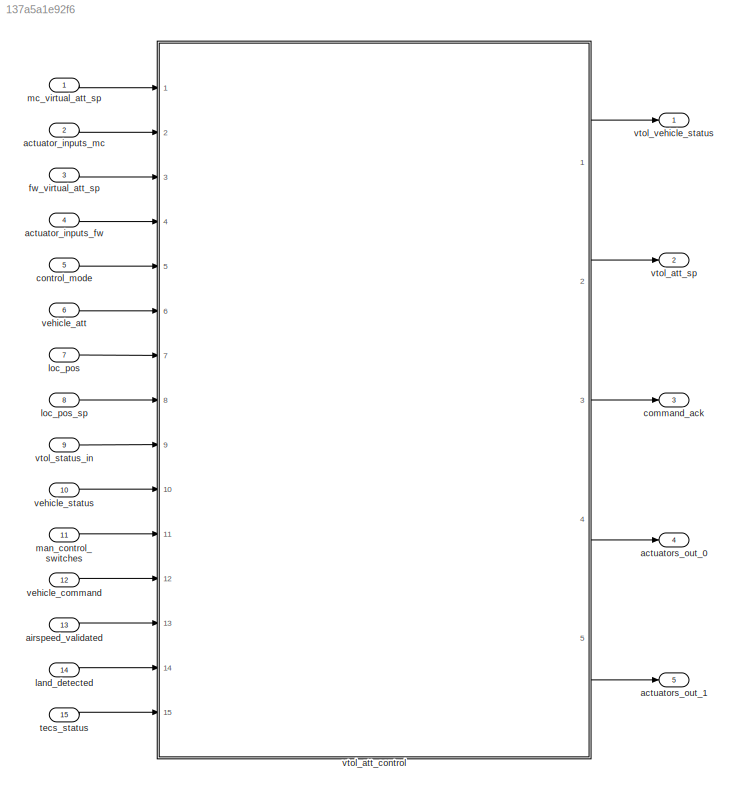
MODEL slx_137a5a1e92f6
KIND model
CONFIG AbsTol = auto
CONFIG EnableMultiTasking = off
CONFIG FixedStep = 0.005
CONFIG MaxStep = auto
CONFIG MinStep = auto
CONFIG RelTol = 1e-3
CONFIG SampleTimeConstraint = Unconstrained
CONFIG SolverName = FixedStepAuto
CONFIG StartTime = 0.0
CONFIG StopTime = 10.0
BLOCK [Inport] actuator_inputs_fw
  BusOutputAsStruct = on
  OutDataTypeStr = Bus: px4_actuator_controls_0
  Port = 4
BLOCK [Inport] actuator_inputs_mc
  BusOutputAsStruct = on
  OutDataTypeStr = Bus: px4_actuator_controls_0
  Port = 2
BLOCK [Outport] actuators_out_0
  OutDataTypeStr = Bus: px4_actuator_controls_0
  Port = 4
BLOCK [Outport] actuators_out_1
  OutDataTypeStr = Bus: px4_actuator_controls
  Port = 5
BLOCK [Inport] airspeed_validated
  BusOutputAsStruct = on
  OutDataTypeStr = Bus: px4_airspeed_validated
  Port = 13
BLOCK [Outport] command_ack
  OutDataTypeStr = Bus: px4_vehicle_command_ack
  Port = 3
BLOCK [Inport] control_mode
  BusOutputAsStruct = on
  OutDataTypeStr = Bus: px4_vehicle_control_mode
  Port = 5
BLOCK [Inport] fw_virtual_att_sp
  BusOutputAsStruct = on
  OutDataTypeStr = Bus: px4_vehicle_attitude_setpoint
  Port = 3
BLOCK [Inport] land_detected
  BusOutputAsStruct = on
  OutDataTypeStr = Bus: px4_vehicle_land_detected
  Port = 14
BLOCK [Inport] loc_pos
  BusOutputAsStruct = on
  OutDataTypeStr = Bus: px4_vehicle_local_position
  Port = 7
BLOCK [Inport] loc_pos_sp
  BusOutputAsStruct = on
  OutDataTypeStr = Bus: px4_vehicle_local_position_setpoint
  Port = 8
BLOCK [Inport] man_control_switches
  BusOutputAsStruct = on
  OutDataTypeStr = Bus: px4_manual_control_switches
  Port = 11
BLOCK [Inport] mc_virtual_att_sp
  BusOutputAsStruct = on
  OutDataTypeStr = Bus: px4_vehicle_attitude_setpoint
BLOCK [Inport] tecs_status
  BusOutputAsStruct = on
  OutDataTypeStr = Bus: px4_tecs_status
  Port = 15
BLOCK [Inport] vehicle_att
  BusOutputAsStruct = on
  OutDataTypeStr = Bus: px4_vehicle_attitude
  Port = 6
BLOCK [Inport] vehicle_command
  BusOutputAsStruct = on
  OutDataTypeStr = Bus: px4_vehicle_command
  Port = 12
BLOCK [Inport] vehicle_status
  BusOutputAsStruct = on
  OutDataTypeStr = Bus: px4_vehicle_status
  Port = 10
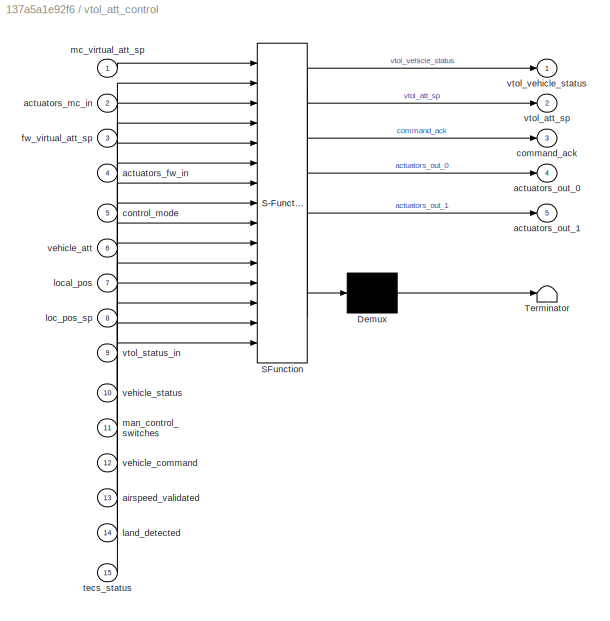
BLOCK [SubSystem] vtol_att_control
  ErrorFcn = Stateflow.Translate.translate
  PermitHierarchicalResolution = ExplicitOnly
  Ports = [15, 5]
  RequestExecContextInheritance = off
  SFBlockType = Chart
  TreatAsAtomicUnit = on
BLOCK [Demux] vtol_att_control/ Demux 
  Outputs = 1
  Ports = [1, 1]
BLOCK [S-Function] vtol_att_control/ SFunction 
  EnableBusSupport = on
  FunctionName = sf_sfun
  Parameters = FW_PSP_OFF,MPC_XY_CRUISE,VT_ARSP_BLEND,VT_ARSP_TRANS,VT_B_DEC_FF,VT_B_DEC_I,VT_B_DEC_MSS,VT_B_REV_DEL,VT_B_REV_OUT,VT_B_TRANS_DUR,VT_B_TRANS_RAMP,VT_ELEV_MC_LOCK,VT_FW_ALT_ERR,VT_FW_MIN_ALT,VT_FW_QC_P,VT_FW_QC_R,VT_F_TRANS_THR,VT_PSHER_RMP_DT,VT_TRANS_MIN_TM,VT_TRANS_TIMEOUT
  PortCounts = [15 6]
  Ports = [15, 6]
  SFcnIsStateOwnerBlock = off
  SFunctionDeploymentMode = off
  Tag = Stateflow S-Function 3
BLOCK [Terminator] vtol_att_control/ Terminator 
BLOCK [Inport] vtol_att_control/actuators_fw_in
  Port = 4
BLOCK [Inport] vtol_att_control/actuators_mc_in
  Port = 2
BLOCK [Outport] vtol_att_control/actuators_out_0
  Port = 4
BLOCK [Outport] vtol_att_control/actuators_out_1
  Port = 5
BLOCK [Inport] vtol_att_control/airspeed_validated
  Port = 13
BLOCK [Outport] vtol_att_control/command_ack
  Port = 3
BLOCK [Inport] vtol_att_control/control_mode
  Port = 5
BLOCK [Inport] vtol_att_control/fw_virtual_att_sp
  Port = 3
BLOCK [Inport] vtol_att_control/land_detected
  Port = 14
BLOCK [Inport] vtol_att_control/loc_pos_sp
  Port = 8
BLOCK [Inport] vtol_att_control/local_pos
  Port = 7
BLOCK [Inport] vtol_att_control/man_control_switches
  Port = 11
BLOCK [Inport] vtol_att_control/mc_virtual_att_sp
BLOCK [Inport] vtol_att_control/tecs_status
  Port = 15
BLOCK [Inport] vtol_att_control/vehicle_att
  Port = 6
BLOCK [Inport] vtol_att_control/vehicle_command
  Port = 12
BLOCK [Inport] vtol_att_control/vehicle_status
  Port = 10
BLOCK [Outport] vtol_att_control/vtol_att_sp
  Port = 2
BLOCK [Inport] vtol_att_control/vtol_status_in
  Port = 9
BLOCK [Outport] vtol_att_control/vtol_vehicle_status
BLOCK [Outport] vtol_att_sp
  OutDataTypeStr = Bus: px4_vehicle_attitude_setpoint
  Port = 2
BLOCK [Inport] vtol_status_in
  BusOutputAsStruct = on
  OutDataTypeStr = Bus: px4_vtol_vehicle_status
  Port = 9
BLOCK [Outport] vtol_vehicle_status
  OutDataTypeStr = Bus: px4_vtol_vehicle_status
LINE actuator_inputs_fw:1 -> vtol_att_control:4
LINE actuator_inputs_mc:1 -> vtol_att_control:2
LINE airspeed_validated:1 -> vtol_att_control:13
LINE control_mode:1 -> vtol_att_control:5
LINE fw_virtual_att_sp:1 -> vtol_att_control:3
LINE land_detected:1 -> vtol_att_control:14
LINE loc_pos:1 -> vtol_att_control:7
LINE loc_pos_sp:1 -> vtol_att_control:8
LINE man_control_switches:1 -> vtol_att_control:11
LINE mc_virtual_att_sp:1 -> vtol_att_control:1
LINE tecs_status:1 -> vtol_att_control:15
LINE vehicle_att:1 -> vtol_att_control:6
LINE vehicle_command:1 -> vtol_att_control:12
LINE vehicle_status:1 -> vtol_att_control:10
LINE vtol_att_control:1 -> vtol_vehicle_status:1
LINE vtol_att_control:2 -> vtol_att_sp:1
LINE vtol_att_control:3 -> command_ack:1
LINE vtol_att_control:4 -> actuators_out_0:1
LINE vtol_att_control:5 -> actuators_out_1:1
LINE vtol_status_in:1 -> vtol_att_control:9
CHART vtol_att_control states=16 transitions=22
  STATE_LABEL 'vehicle_cmd_poll'
  STATE_LABEL 'DO_VTOL_TRANSITION\nen:\nresult = PX4_VEHICLE_COMMAND_ACK.VEHICLE_RESULT_ACCEPTED;\n% 在自动起飞阶段、或者在land或者RTL模式下拒绝从RW转换到FW\nif (vehicle_command.command == PX4_VEHICLE_COMMAND.VEHICLE_CMD_DO_VTOL_TRANSITION)\n    \n    if (vehicle_status.nav_state == PX4_VEHICLE_STATUS.NAVIGATION_STATE_AUTO_TAKEOFF || ...\n            (vehicle_status.vehicle_type == PX4_VEHICLE_STATUS.VEHICLE_TYPE_ROTARY_WING && ...\n        ...<+911ch>'
  STATE_LABEL 'NONE'
  STATE_LABEL 'KEEP_IN_MC\nen:\ntransition_command_ = int8(PX4_VTOL_VEHICLE_STATUS.VEHICLE_VTOL_STATE_MC);'
  STATE_LABEL 'KEEP_IN_FW\nen:\ntransition_command_ = int8(PX4_VTOL_VEHICLE_STATUS.VEHICLE_VTOL_STATE_FW);'
  STATE_LABEL "TRANSITION_TO_MC\nen:\n% We want to make sure that a mode change (manual>auto) during the back transition\n% doesn't result in an unsafe state. This prevents the instant fall back to\n% fixed-wing on the switch from manual to auto.\n% 飞机本来是在从固定翼过渡到旋翼模式的时候，如果接管，那么直接变成旋翼模式\ntransition_command_ = int8(PX4_VTOL_VEHICLE_STATUS.VEHICLE_VTOL_STATE_MC);"
  STATE_LABEL 'NONE1'
  STATE_LABEL '% 轮询是否有开启转换的指令\n[hasChanged(vehicle_command.timestamp)]'
  STATE_LABEL '[vehicle_command.command == PX4_VEHICLE_COMMAND.VEHICLE_CMD_DO_VTOL_TRANSITION]'
  STATE_LABEL '% reset transition command if not auto control\n[control_mode.flag_control_manual_enabled == true]'
  STATE_LABEL '% vtol_mode_ == mode::ROTARY_WING\n[vtol_mode_ == uint8(3)]'
  STATE_LABEL '% vtol_mode_ == mode::FIXED_WING\n[vtol_mode_ == uint8(4)]'
  STATE_LABEL '% mode::TRANSITION_TO_MC\n[vtol_mode_ == uint8(2)]'
  STATE_LABEL 'DO_VTOL_TRANSITION\nen:\nresult = PX4_VEHICLE_COMMAND_ACK.VEHICLE_RESULT_ACCEPTED;\n% 在自动起飞阶段、或者在land或者RTL模式下拒绝从RW转换到FW\nif (vehicle_command.command == PX4_VEHICLE_COMMAND.VEHICLE_CMD_DO_VTOL_TRANSITION)\n    \n    if (vehicle_status.nav_state == PX4_VEHICLE_STATUS.NAVIGATION_STATE_AUTO_TAKEOFF || ...\n            (vehicle_status.vehicle_type == PX4_VEHICLE_STATUS.VEHICLE_TYPE_ROTARY_WING && ...\n        ...<+911ch>'
  STATE_LABEL 'NONE'
  STATE_LABEL 'KEEP_IN_MC\nen:\ntransition_command_ = int8(PX4_VTOL_VEHICLE_STATUS.VEHICLE_VTOL_STATE_MC);'
  STATE_LABEL 'KEEP_IN_FW\nen:\ntransition_command_ = int8(PX4_VTOL_VEHICLE_STATUS.VEHICLE_VTOL_STATE_FW);'
  STATE_LABEL "TRANSITION_TO_MC\nen:\n% We want to make sure that a mode change (manual>auto) during the back transition\n% doesn't result in an unsafe state. This prevents the instant fall back to\n% fixed-wing on the switch from manual to auto.\n% 飞机本来是在从固定翼过渡到旋翼模式的时候，如果接管，那么直接变成旋翼模式\ntransition_command_ = int8(PX4_VTOL_VEHICLE_STATUS.VEHICLE_VTOL_STATE_MC);"
  STATE_LABEL 'NONE1'
  STATE_LABEL 'vtol_state_flow\n\n'
  STATE_LABEL 'to_fw = is_fixed_wing_requested'
  STATE_LABEL 'SCRIPT:\n% Returns true if fixed-wing mode is requested. Changed either via switch or via command.\nfunction to_fw = is_fixed_wing_requested\n\nto_fw = false;\n\nif (man_control_switches.transition_switch ~= PX4_MANUAL_CONTROL_SWITCHES.SWITCH_POS_NONE && ...\n        control_mode.flag_control_manual_enabled)\n    \n    % 判断飞手是否想要切换到FW模式\n    to_fw = (man_control_switches.transition_switch == PX4_MANUAL_CONT...<+249ch>'
  STATE_LABEL 'check_quadchute_condition'
  STATE_LABEL 'SCRIPT:\n%% QuadChute Altitude\n%\n% Minimum altitude for fixed wing flight, when in fixed wing the altitude drops below this altitude\n% the vehicle will transition back to MC mode and enter failsafe RTL\n% @min 0.0\n% @max 200.0\n% @group VTOL Attitude Control\n% PARAM_DEFINE_FLOAT(VT_FW_MIN_ALT, 0.0f);\n\n%% Adaptive QuadChute\n%\n% Maximum negative altitude error for fixed wing flight. If the altitude dro...<+3608ch>'
  STATE_LABEL 'MC_MODE_\nen:\nvtol_schedule_.flight_mode = uint8(PX4_VTOL_MODE.MC_MODE);\nvtol_mode_ = uint8(PX4_VTOL_MODETYPE.ROTARY_WING);\n% 转换失败保护或者没有开启过渡到固定翼的开关，那么启用旋翼模式\nif (vtol_status_in.vtol_transition_failsafe || ~vtol_state_flow.is_fixed_wing_requested)\n    pusher_throttle_ = single(0.0);\n    reverse_output_ = single(0.0);\n    % reset failsafe when FW is no longer requested\n    % 转换失败后，如果转换通道还在保持请求转换到固定翼，那...<+2440ch>'
  STATE_LABEL 'TRANSITION_TO_FW_\nen:\nvtol_schedule_.transition_start = uint64(getSimulationTime) * 1e+6; % 单位：us\nvtol_schedule_.flight_mode = uint8(PX4_VTOL_MODE.TRANSITION_TO_FW);\nvtol_mode_ = uint8(PX4_VTOL_MODETYPE.TRANSITION_TO_FW);\n% 飞机当前正处于过渡到固定翼的阶段\nen,du:\n% 计算转换条件（看是否能转换到固定翼阶段）\ntime_since_trans_start_ = single(elapsed(sec));\n% update transition to fw\nvtol_vehicle_status.vtol_in_trans_mode = true;\nvtol_veh...<+2155ch>'
  STATE_LABEL 'transition_to_fw'
  STATE_LABEL 'SCRIPT:\n%% VT_PSHER_RMP_DT\n% Defines the time window during which the pusher throttle will be ramped up linearly to VT_F_TRANS_THR during a transition\n% to fixed wing mode. Zero or negative values will produce an instant throttle rise to VT_F_TRANS_THR.\n% @max 20\n% @increment 0.01\n% @decimal 2\n% @group VTOL Attitude Control\n% PARAM_DEFINE_FLOAT(VT_PSHER_RMP_DT, 3.0f);\n\n%% VT_F_TRANS_THR\n% Target t...<+2726ch>'
  STATE_LABEL 'FW_MODE_\nen:\ntrans_finished_ts_ = uint64(getSimulationTime * 1e+6); % 单位：us\nvtol_schedule_.flight_mode = uint8(PX4_VTOL_MODE.FW_MODE);\nvtol_mode_ = uint8(PX4_VTOL_MODETYPE.FIXED_WING);\n% 正常情况下，进入固定翼模式后，保持该模式飞行\nen,du:\nmc_weight_ = single(0.0);\nvtol_vehicle_status.vtol_in_rw_mode = false;\nvtol_vehicle_status.vtol_in_trans_mode = false;\nvtol_vehicle_status.in_transition_to_fw = false;\n% 更新固定翼状态\nif (h...<+2573ch>'
  STATE_LABEL 'TRANSITION_TO_MC_\nen:\n% 没有请求转换到固定翼模式，就会切回旋翼模式\nif (~vtol_state_flow.is_fixed_wing_requested)\n    % 单位：us\n    vtol_schedule_.transition_start = uint64(getSimulationTime * 1e+6);\n    reverse_output_ = constrain(VT_B_REV_OUT, 0.0, 1.0);\nend\n% 固定翼转多旋翼\nen,du:\n% 计算转换成旋翼模式失败的条件\ntime_since_trans_start_ = single(elapsed(sec));\nR_to_body = quat_to_dcm(vehicle_att.q);\nvel = R_to_body * [local_pos.vx; local_po...<+1847ch>'
  STATE_LABEL 'transition_to_mc'
  STATE_LABEL 'SCRIPT:\n% Parameters\n%% Delay in seconds before applying back transition throttle\n% Set this to a value greater than 0 to give the motor time to spin down.\n% unit s\n% @min 0\n% @max 10\n% @increment 1\n% @decimal 2\n% @group VTOL Attitude Control\n% PARAM_DEFINE_FLOAT(VT_B_REV_DEL, 0.0f);\n\n%% Back transition MC motor ramp up time\n% This sets the duration during which the MC motors ramp up to the comman...<+3469ch>'
  STATE_LABEL '% 请求转换到固定翼模式\n[is_fixed_wing_requested()]'
  STATE_LABEL '% 满足转换时间且空速大于转换的阈值\n% 或未解锁或飞机在地面\n[((time_since_trans_start_ > VT_TRANS_MIN_TM) && ...\nisfinite(airspeed_validated.calibrated_airspeed_m_s) && ...\n(airspeed_validated.calibrated_airspeed_m_s >= VT_TRANS_MIN_TM)) || ...\n(~control_mode.flag_armed || land_detected.landed)]'
  STATE_LABEL '% 没有请求转换到固定翼模式\n% 或者转换失败\n[~is_fixed_wing_requested() || ...\nvtol_status_in.vtol_transition_failsafe]'
  STATE_LABEL '% 请求转换到固定翼模式\n[is_fixed_wing_requested()]'
  STATE_LABEL '% 转换超时，或者前向速度低于旋翼的巡航速\n% 或未解锁或飞机在地面\n[(time_since_trans_start_ > VT_B_TRANS_DUR) || ...\n (local_pos.v_xy_valid && x_vel <= MPC_XY_CRUISE) || ...\n (~control_mode.flag_armed || land_detected.landed)]'
  STATE_LABEL '% 没有请求转换到固定翼模式\n[~is_fixed_wing_requested() || ...\n(vtol_schedule_.flight_mode == uint8(PX4_VTOL_MODE.TRANSITION_TO_MC))]'
  STATE_LABEL 'to_fw = is_fixed_wing_requested'
  STATE_LABEL 'SCRIPT:\n% Returns true if fixed-wing mode is requested. Changed either via switch or via command.\nfunction to_fw = is_fixed_wing_requested\n\nto_fw = false;\n\nif (man_control_switches.transition_switch ~= PX4_MANUAL_CONTROL_SWITCHES.SWITCH_POS_NONE && ...\n        control_mode.flag_control_manual_enabled)\n    \n    % 判断飞手是否想要切换到FW模式\n    to_fw = (man_control_switches.transition_switch == PX4_MANUAL_CONT...<+249ch>'
CHART  states=0 transitions=0
